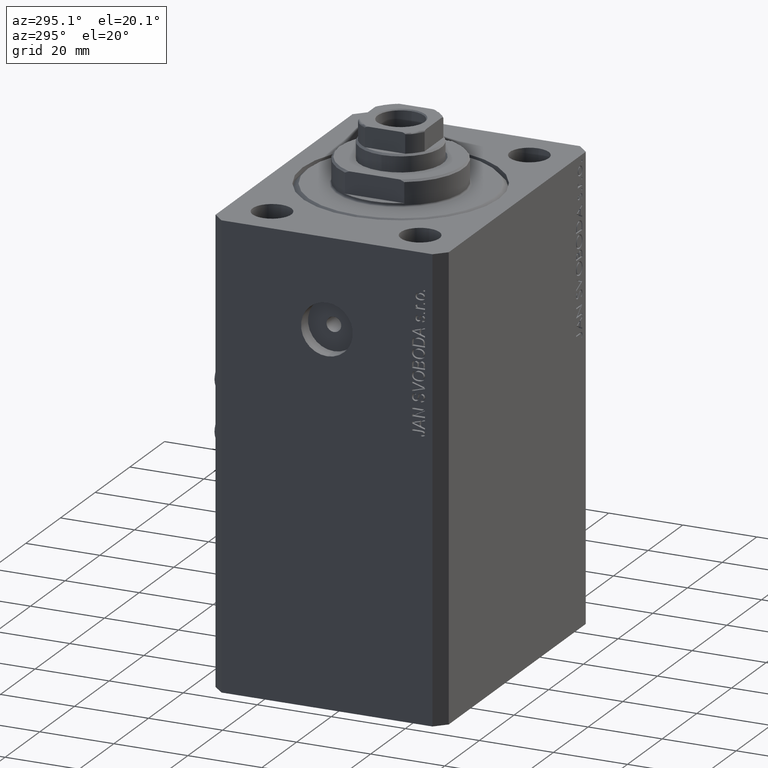
[diagram: clean part render]
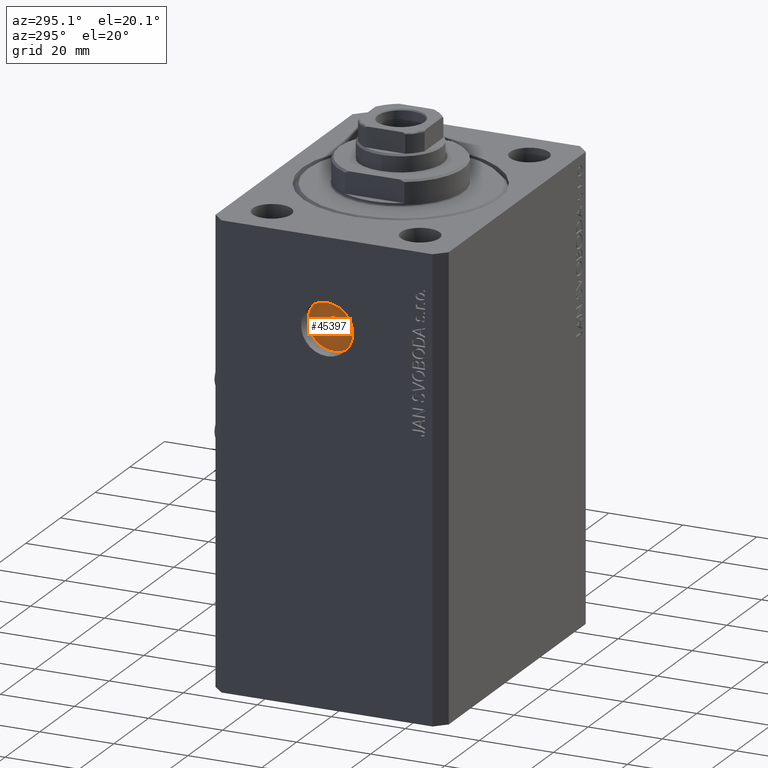
[diagram: same view with one face highlighted and labeled with its STEP entity id]
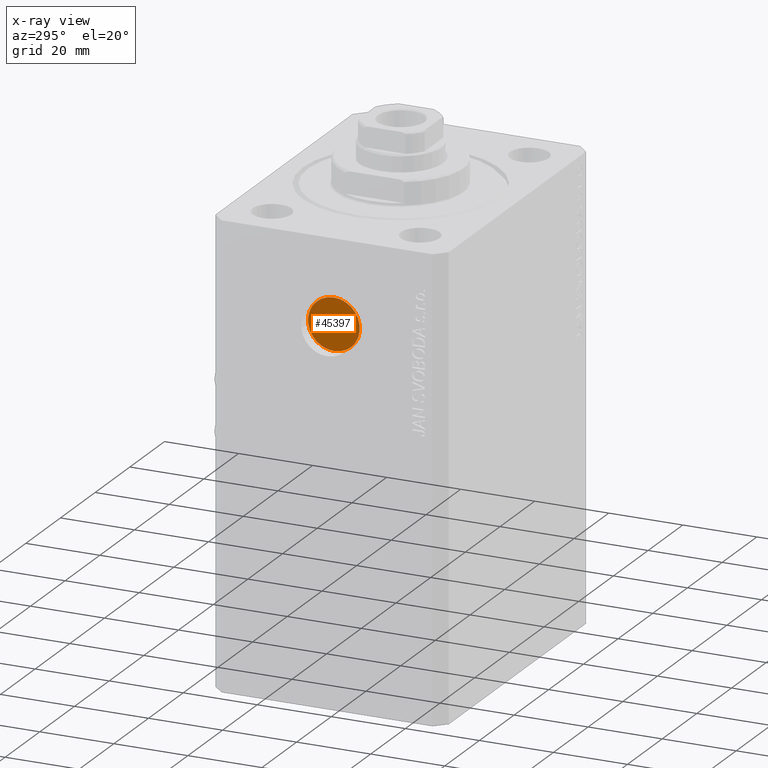
[diagram: x-ray of the same camera — body ghosted, the highlighted face saturated]
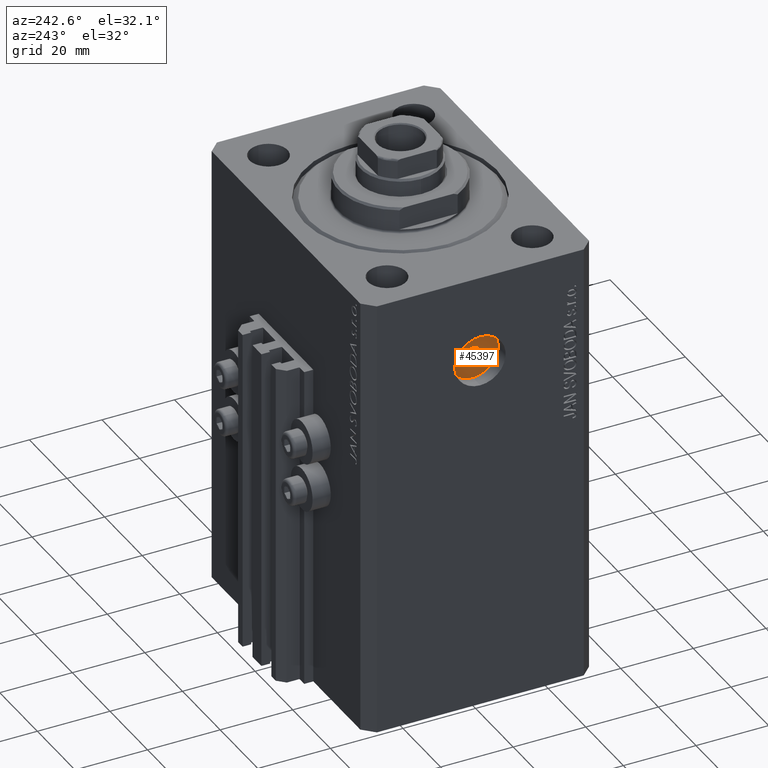
[diagram: same view with one face highlighted and labeled with its STEP entity id]
A machine part, auxiliary view. The second image highlights one B-rep face of the part: STEP entity #45397.
The next image is the same camera in x-ray: the body ghosted, the highlighted face saturated — about 0% of this face is hidden behind the body in this view.
A second angle (auxiliary view) of the same face is appended — the face is thin or edge-on in the first view.
In plain terms, the highlighted planar face has unit normal (-1, 0, 0).
Its self-contained STEP definition (entity closure, byte-faithful):
#285 = DIRECTION ( 'NONE',  ( 0.000000000000000000, 0.000000000000000000, 1.000000000000000000 ) ) ;
#557 = CARTESIAN_POINT ( 'NONE',  ( -38.50000000000000711, 0.000000000000000000, -23.99999999999999645 ) ) ;
#3000 = EDGE_CURVE ( 'NONE', #24312, #24187, #41460, .T. ) ;
#3004 = CARTESIAN_POINT ( 'NONE',  ( -38.50000000000000711, 8.572527594031474176E-16, -31.00000000000000000 ) ) ;
#3864 = PLANE ( 'NONE',  #15447 ) ;
#4436 = CARTESIAN_POINT ( 'NONE',  ( -38.50000000000000711, 0.000000000000000000, -23.99999999999999645 ) ) ;
#5640 = DIRECTION ( 'NONE',  ( -1.000000000000000000, 0.000000000000000000, 0.000000000000000000 ) ) ;
#6548 = VERTEX_POINT ( 'NONE', #46208 ) ;
#7448 = FACE_BOUND ( 'NONE', #16275, .T. ) ;
#8456 = AXIS2_PLACEMENT_3D ( 'NONE', #17528, #46726, #17763 ) ;
#9214 = AXIS2_PLACEMENT_3D ( 'NONE', #4436, #37019, #19045 ) ;
#11310 = CARTESIAN_POINT ( 'NONE',  ( -38.50000000000000711, 2.449293598294705921E-16, -25.99999999999999645 ) ) ;
#12255 = CARTESIAN_POINT ( 'NONE',  ( -38.50000000000000711, 0.000000000000000000, -22.00000000000000000 ) ) ;
#12762 = EDGE_LOOP ( 'NONE', ( #25355, #17927 ) ) ;
#15447 = AXIS2_PLACEMENT_3D ( 'NONE', #33068, #18465, #285 ) ;
#16275 = EDGE_LOOP ( 'NONE', ( #39957, #44440 ) ) ;
#16867 = CIRCLE ( 'NONE', #8456, 6.999999999999999112 ) ;
#17528 = CARTESIAN_POINT ( 'NONE',  ( -38.50000000000000711, 0.000000000000000000, -23.99999999999999645 ) ) ;
#17763 = DIRECTION ( 'NONE',  ( 0.000000000000000000, 0.000000000000000000, 1.000000000000000000 ) ) ;
#17927 = ORIENTED_EDGE ( 'NONE', *, *, #41183, .T. ) ;
#18302 = DIRECTION ( 'NONE',  ( 0.000000000000000000, 0.000000000000000000, 1.000000000000000000 ) ) ;
#18465 = DIRECTION ( 'NONE',  ( -1.000000000000000000, 0.000000000000000000, 0.000000000000000000 ) ) ;
#18516 = DIRECTION ( 'NONE',  ( 0.000000000000000000, 0.000000000000000000, 1.000000000000000000 ) ) ;
#19045 = DIRECTION ( 'NONE',  ( 0.000000000000000000, 0.000000000000000000, 1.000000000000000000 ) ) ;
#20832 = AXIS2_PLACEMENT_3D ( 'NONE', #42960, #5640, #18302 ) ;
#21522 = VERTEX_POINT ( 'NONE', #3004 ) ;
#22056 = FACE_OUTER_BOUND ( 'NONE', #12762, .T. ) ;
#24187 = VERTEX_POINT ( 'NONE', #11310 ) ;
#24312 = VERTEX_POINT ( 'NONE', #12255 ) ;
#25355 = ORIENTED_EDGE ( 'NONE', *, *, #40692, .T. ) ;
#30003 = DIRECTION ( 'NONE',  ( -1.000000000000000000, 0.000000000000000000, 0.000000000000000000 ) ) ;
#33068 = CARTESIAN_POINT ( 'NONE',  ( -38.50000000000000711, 0.000000000000000000, -23.99999999999999645 ) ) ;
#34572 = AXIS2_PLACEMENT_3D ( 'NONE', #557, #30003, #18516 ) ;
#36735 = CIRCLE ( 'NONE', #9214, 6.999999999999999112 ) ;
#37019 = DIRECTION ( 'NONE',  ( -1.000000000000000000, 0.000000000000000000, 0.000000000000000000 ) ) ;
#39957 = ORIENTED_EDGE ( 'NONE', *, *, #3000, .F. ) ;
#40692 = EDGE_CURVE ( 'NONE', #6548, #21522, #36735, .T. ) ;
#41183 = EDGE_CURVE ( 'NONE', #21522, #6548, #16867, .T. ) ;
#41460 = CIRCLE ( 'NONE', #20832, 1.999999999999998224 ) ;
#42960 = CARTESIAN_POINT ( 'NONE',  ( -38.50000000000000711, 0.000000000000000000, -23.99999999999999645 ) ) ;
#44305 = EDGE_CURVE ( 'NONE', #24187, #24312, #46756, .T. ) ;
#44440 = ORIENTED_EDGE ( 'NONE', *, *, #44305, .F. ) ;
#45397 = ADVANCED_FACE ( 'NONE', ( #7448, #22056 ), #3864, .T. ) ;
#46208 = CARTESIAN_POINT ( 'NONE',  ( -38.50000000000000711, 0.000000000000000000, -16.99999999999999645 ) ) ;
#46726 = DIRECTION ( 'NONE',  ( -1.000000000000000000, 0.000000000000000000, 0.000000000000000000 ) ) ;
#46756 = CIRCLE ( 'NONE', #34572, 1.999999999999998224 ) ;